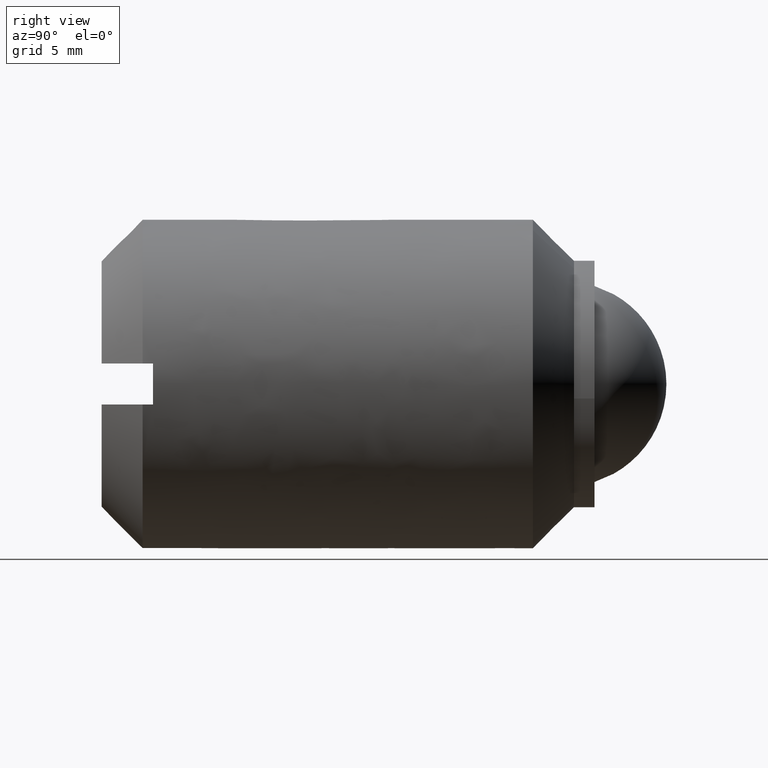
[diagram: clean part render]
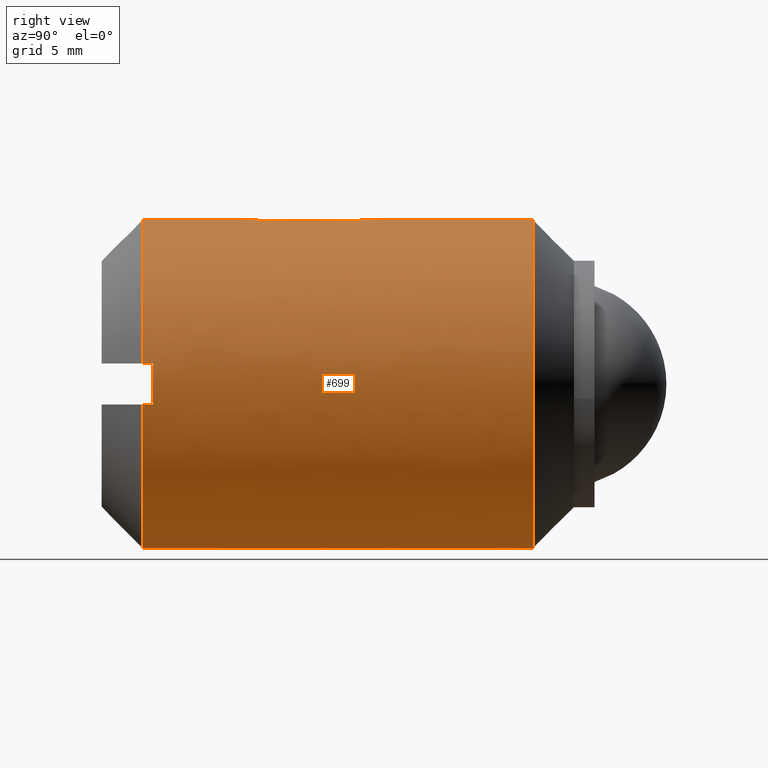
[diagram: same view with one face highlighted and labeled with its STEP entity id]
A machine part, right view. The second image highlights one B-rep face of the part: STEP entity #699.
In plain terms, the highlighted face is a freeform B-spline surface patch.
Its self-contained STEP definition (entity closure, byte-faithful):
#291=CARTESIAN_POINT('',(-4.870091037611219,-6.500000000000000,6.346827025008528));
#292=VERTEX_POINT('',#291);
#306=CARTESIAN_POINT('',(0.0,-6.500000000000000,7.999999999999998));
#307=VERTEX_POINT('',#306);
#308=CARTESIAN_POINT('',(0.0,-6.500000000000000,7.999999999999998));
#309=CARTESIAN_POINT('',(-2.715633516410479,-6.499999999999999,7.999999999999999));
#310=CARTESIAN_POINT('',(-4.870091037611219,-6.500000000000000,6.346827025008528));
#318=(BOUNDED_CURVE()B_SPLINE_CURVE(2,(#308,#309,#310),.UNSPECIFIED.,.F.,.U.)B_SPLINE_CURVE_WITH_KNOTS((3,3),(0.500000000000000,0.605220491557170),.UNSPECIFIED.)CURVE()GEOMETRIC_REPRESENTATION_ITEM()RATIONAL_B_SPLINE_CURVE((1.0,0.876726526170748,0.857220216439686))REPRESENTATION_ITEM(''));
#319=EDGE_CURVE('',#307,#292,#318,.T.);
#321=CARTESIAN_POINT('',(2.812943795133173,-6.500000000000057,7.489148630213096));
#322=VERTEX_POINT('',#321);
#323=CARTESIAN_POINT('',(2.812943795133174,-6.500000000000057,7.489148630213097));
#324=CARTESIAN_POINT('',(1.452859088534721,-6.500000000000001,7.999999999999997));
#325=CARTESIAN_POINT('',(0.0,-6.500000000000000,7.999999999999998));
#333=(BOUNDED_CURVE()B_SPLINE_CURVE(2,(#323,#324,#325),.UNSPECIFIED.,.F.,.U.)B_SPLINE_CURVE_WITH_KNOTS((3,3),(0.440284170898885,0.500000000000000),.UNSPECIFIED.)CURVE()GEOMETRIC_REPRESENTATION_ITEM()RATIONAL_B_SPLINE_CURVE((0.893499554635736,0.930038554401842,1.0))REPRESENTATION_ITEM(''));
#334=EDGE_CURVE('',#322,#307,#333,.T.);
#384=CARTESIAN_POINT('',(0.0,-6.500000000000000,-8.000000000000002));
#385=VERTEX_POINT('',#384);
#386=CARTESIAN_POINT('',(0.0,-6.500000000000000,-8.000000000000002));
#387=CARTESIAN_POINT('',(8.0,-6.500000000000001,-8.000000000000002));
#388=CARTESIAN_POINT('',(8.0,-6.500000000000000,-1.806294E-015));
#389=CARTESIAN_POINT('',(8.0,-6.500000000000000,5.540876765554441));
#390=CARTESIAN_POINT('',(2.812943795133173,-6.500000000000057,7.489148630213096));
#398=(BOUNDED_CURVE()B_SPLINE_CURVE(2,(#386,#387,#388,#389,#390),.UNSPECIFIED.,.F.,.U.)B_SPLINE_CURVE_WITH_KNOTS((3,2,3),(0.0,0.250000000000000,0.440284170898885),.UNSPECIFIED.)CURVE()GEOMETRIC_REPRESENTATION_ITEM()RATIONAL_B_SPLINE_CURVE((1.0,0.707106781186548,1.0,0.777068226784706,0.893499554635736))REPRESENTATION_ITEM(''));
#399=EDGE_CURVE('',#385,#322,#398,.T.);
#401=CARTESIAN_POINT('',(-7.310556275005265,-6.500000000000000,-3.248963981022425));
#402=VERTEX_POINT('',#401);
#403=CARTESIAN_POINT('',(-7.310556275005265,-6.500000000000001,-3.248963981022424));
#404=CARTESIAN_POINT('',(-5.199096749012838,-6.500000000000000,-8.000000000000002));
#405=CARTESIAN_POINT('',(0.0,-6.500000000000000,-8.000000000000002));
#413=(BOUNDED_CURVE()B_SPLINE_CURVE(2,(#403,#404,#405),.UNSPECIFIED.,.F.,.U.)B_SPLINE_CURVE_WITH_KNOTS((3,3),(0.818963736983759,1.0),.UNSPECIFIED.)CURVE()GEOMETRIC_REPRESENTATION_ITEM()RATIONAL_B_SPLINE_CURVE((0.882983889563165,0.787902824812858,1.0))REPRESENTATION_ITEM(''));
#414=EDGE_CURVE('',#402,#385,#413,.T.);
#592=CARTESIAN_POINT('',(-7.310556180406904,-6.024999999999999,-3.248964193880011));
#593=CARTESIAN_POINT('',(-6.924905108886705,-6.025000000000000,-4.116725011217804));
#594=CARTESIAN_POINT('',(-6.346826722329880,-6.024999999999999,-4.870091432069764));
#595=CARTESIAN_POINT('',(-1.476735290260119,-6.024999999999999,-11.216918154399643));
#596=CARTESIAN_POINT('',(4.870091432069762,-6.024999999999999,-6.346826722329882));
#597=CARTESIAN_POINT('',(11.216918154399643,-6.024999999999999,-1.476735290260121));
#598=CARTESIAN_POINT('',(6.346826722329880,-6.024999999999999,4.870091432069760));
#599=CARTESIAN_POINT('',(1.476735290260119,-6.024999999999999,11.216918154399639));
#600=CARTESIAN_POINT('',(-4.870091432069762,-6.024999999999999,6.346826722329879));
#601=CARTESIAN_POINT('',(-7.310556180406904,-25.986875000000001,-3.248964193880011));
#602=CARTESIAN_POINT('',(-6.924905108886705,-25.986875000000005,-4.116725011217804));
#603=CARTESIAN_POINT('',(-6.346826722329880,-25.986875000000001,-4.870091432069764));
#604=CARTESIAN_POINT('',(-1.476735290260119,-25.986874999999994,-11.216918154399643));
#605=CARTESIAN_POINT('',(4.870091432069762,-25.986875000000001,-6.346826722329882));
#606=CARTESIAN_POINT('',(11.216918154399643,-25.986874999999994,-1.476735290260121));
#607=CARTESIAN_POINT('',(6.346826722329880,-25.986875000000001,4.870091432069760));
#608=CARTESIAN_POINT('',(1.476735290260119,-25.986874999999994,11.216918154399639));
#609=CARTESIAN_POINT('',(-4.870091432069762,-25.986875000000001,6.346826722329879));
#617=(BOUNDED_SURFACE()B_SPLINE_SURFACE(2,1,((#592,#601),(#593,#602),(#594,#603),(#595,#604),(#596,#605),(#597,#606),(#598,#607),(#599,#608),(#600,#609)),.UNSPECIFIED.,.F.,.F.,.U.)B_SPLINE_SURFACE_WITH_KNOTS((3,2,2,2,3),(2,2),(0.0,2.120773439350248,15.375607435289290,28.630441431228331,41.885275427167372),(0.0,19.961875000000010),.UNSPECIFIED.)GEOMETRIC_REPRESENTATION_ITEM()RATIONAL_B_SPLINE_SURFACE(((0.921270302782944,0.921270302782944),(0.953137084989848,0.953137084989848),(1.0,1.0),(0.707106781186548,0.707106781186548),(1.0,1.0),(0.707106781186548,0.707106781186548),(1.0,1.0),(0.707106781186548,0.707106781186548),(1.0,1.0)))REPRESENTATION_ITEM('')SURFACE());
#618=ORIENTED_EDGE('',*,*,#414,.T.);
#619=ORIENTED_EDGE('',*,*,#399,.T.);
#620=ORIENTED_EDGE('',*,*,#334,.T.);
#621=ORIENTED_EDGE('',*,*,#319,.T.);
#622=CARTESIAN_POINT('',(-4.870091377275460,-25.500000000000000,6.346826764375027));
#623=VERTEX_POINT('',#622);
#624=CARTESIAN_POINT('',(-4.870091037611219,-6.500000000000000,6.346827025008528));
#625=CARTESIAN_POINT('',(-4.870091377275460,-25.500000000000000,6.346826764375027));
#626=QUASI_UNIFORM_CURVE('',1,(#624,#625),.UNSPECIFIED.,.F.,.U.);
#627=EDGE_CURVE('',#292,#623,#626,.T.);
#628=ORIENTED_EDGE('',*,*,#627,.T.);
#629=CARTESIAN_POINT('',(7.937253999999999,-25.500000000000000,1.0));
#630=VERTEX_POINT('',#629);
#631=CARTESIAN_POINT('',(7.937253999999999,-25.500000000000000,1.0));
#632=CARTESIAN_POINT('',(7.055336837392421,-25.500000000000007,7.999999996317649));
#633=CARTESIAN_POINT('',(4.175392E-009,-25.500000000000000,7.999999999999998));
#634=CARTESIAN_POINT('',(-2.715633992034666,-25.499999999999996,8.000000001417353));
#635=CARTESIAN_POINT('',(-4.870091377275460,-25.500000000000004,6.346826764375028));
#643=(BOUNDED_CURVE()B_SPLINE_CURVE(2,(#631,#632,#633,#634,#635),.UNSPECIFIED.,.F.,.U.)B_SPLINE_CURVE_WITH_KNOTS((3,2,3),(0.0,0.500000000000000,0.727424371635832),.UNSPECIFIED.)CURVE()GEOMETRIC_REPRESENTATION_ITEM()RATIONAL_B_SPLINE_CURVE((1.0,0.749999999827390,1.0,0.886287814103573,0.876019317906473))REPRESENTATION_ITEM(''));
#644=EDGE_CURVE('',#630,#623,#643,.T.);
#645=ORIENTED_EDGE('',*,*,#644,.F.);
#646=CARTESIAN_POINT('',(7.937253999999999,-25.0,1.0));
#647=VERTEX_POINT('',#646);
#648=CARTESIAN_POINT('',(7.937253999999999,-25.0,1.0));
#649=CARTESIAN_POINT('',(7.937253999999999,-25.500000000000000,1.0));
#650=QUASI_UNIFORM_CURVE('',1,(#648,#649),.UNSPECIFIED.,.F.,.U.);
#651=EDGE_CURVE('',#647,#630,#650,.T.);
#652=ORIENTED_EDGE('',*,*,#651,.F.);
#653=CARTESIAN_POINT('',(7.937253933193770,-25.0,-1.0));
#654=VERTEX_POINT('',#653);
#655=CARTESIAN_POINT('',(7.937253933193772,-25.0,-1.000000000000002));
#656=CARTESIAN_POINT('',(8.063242090333306,-25.000000000000004,-4.208403E-009));
#657=CARTESIAN_POINT('',(7.937253999999999,-25.0,1.0));
#665=(BOUNDED_CURVE()B_SPLINE_CURVE(2,(#655,#656,#657),.UNSPECIFIED.,.F.,.U.)CURVE()GEOMETRIC_REPRESENTATION_ITEM()QUASI_UNIFORM_CURVE()RATIONAL_B_SPLINE_CURVE((1.0,0.992156741714462,1.0))REPRESENTATION_ITEM(''));
#666=EDGE_CURVE('',#654,#647,#665,.T.);
#667=ORIENTED_EDGE('',*,*,#666,.F.);
#668=CARTESIAN_POINT('',(7.937253933193770,-25.500000000000000,-1.0));
#669=VERTEX_POINT('',#668);
#670=CARTESIAN_POINT('',(7.937253933193770,-25.0,-1.0));
#671=CARTESIAN_POINT('',(7.937253933193770,-25.500000000000000,-1.0));
#672=QUASI_UNIFORM_CURVE('',1,(#670,#671),.UNSPECIFIED.,.F.,.U.);
#673=EDGE_CURVE('',#654,#669,#672,.T.);
#674=ORIENTED_EDGE('',*,*,#673,.T.);
#675=CARTESIAN_POINT('',(-7.310557780470655,-25.500000000000000,-3.248960593541331));
#676=VERTEX_POINT('',#675);
#677=CARTESIAN_POINT('',(-7.310557780470655,-25.500000000000000,-3.248960593541332));
#678=CARTESIAN_POINT('',(-5.199099219651420,-25.499999999999996,-8.000000000000002));
#679=CARTESIAN_POINT('',(0.0,-25.500000000000000,-8.000000000000002));
#680=CARTESIAN_POINT('',(7.055336829505573,-25.500000000000000,-8.000000000000002));
#681=CARTESIAN_POINT('',(7.937253933193772,-25.500000000000000,-1.000000000000005));
#689=(BOUNDED_CURVE()B_SPLINE_CURVE(2,(#677,#678,#679,#680,#681),.UNSPECIFIED.,.F.,.U.)B_SPLINE_CURVE_WITH_KNOTS((3,2,3),(0.105607617248739,0.500000000000000,1.0),.UNSPECIFIED.)CURVE()GEOMETRIC_REPRESENTATION_ITEM()RATIONAL_B_SPLINE_CURVE((0.916698320393173,0.802803808624370,1.0,0.750000000000000,1.0))REPRESENTATION_ITEM(''));
#690=EDGE_CURVE('',#676,#669,#689,.T.);
#691=ORIENTED_EDGE('',*,*,#690,.F.);
#692=CARTESIAN_POINT('',(-7.310556275005265,-6.500000000000000,-3.248963981022425));
#693=CARTESIAN_POINT('',(-7.310557780470655,-25.500000000000000,-3.248960593541331));
#694=QUASI_UNIFORM_CURVE('',1,(#692,#693),.UNSPECIFIED.,.F.,.U.);
#695=EDGE_CURVE('',#402,#676,#694,.T.);
#696=ORIENTED_EDGE('',*,*,#695,.F.);
#697=EDGE_LOOP('',(#618,#619,#620,#621,#628,#645,#652,#667,#674,#691,#696));
#698=FACE_OUTER_BOUND('',#697,.T.);
#699=ADVANCED_FACE('',(#698),#617,.T.);